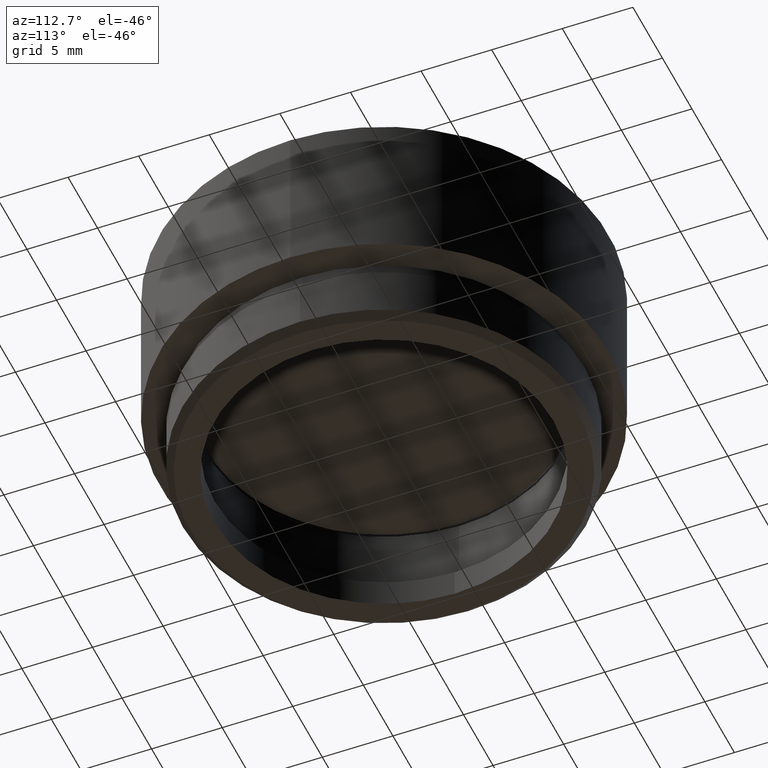
[diagram: clean part render]
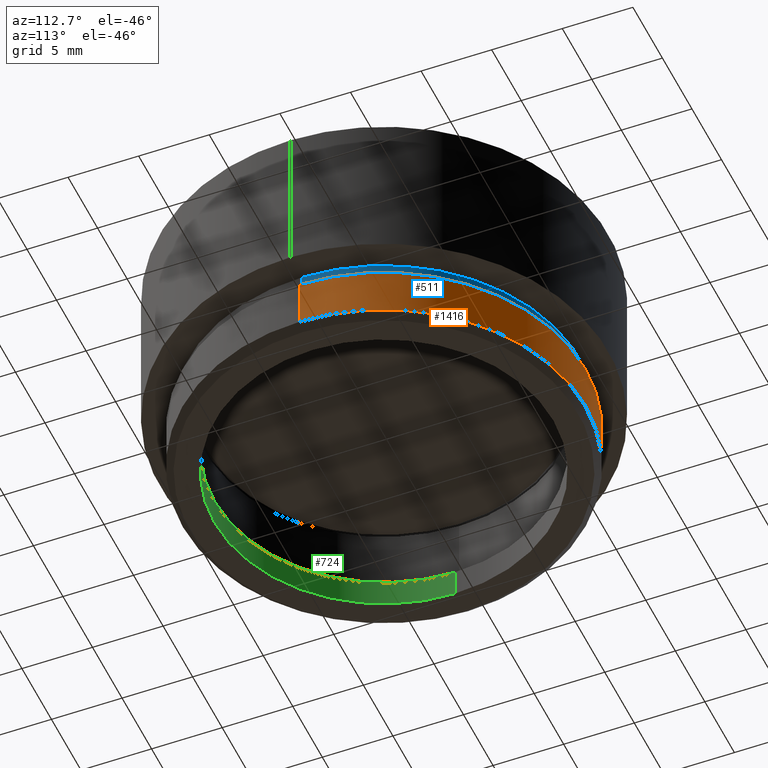
[diagram: same view with three faces highlighted in distinct colors, each labeled with its STEP entity id]
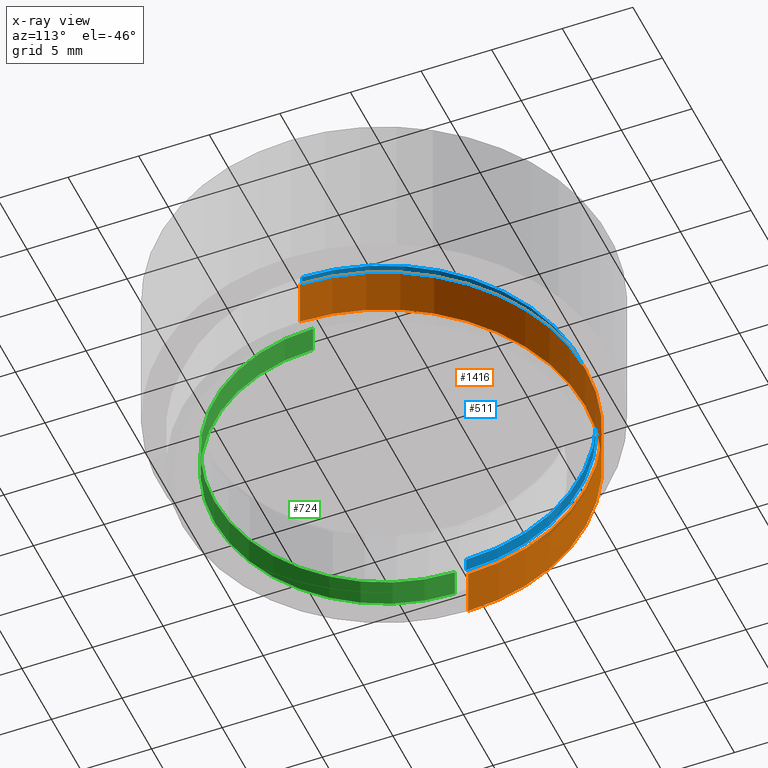
[diagram: x-ray of the same camera — body ghosted, the three highlighted faces saturated]
A machine part, auxiliary view with three faces highlighted in distinct colors.
The next image is the same camera in x-ray (body ghosted, the three faces saturated) — at least one of them is partly hidden behind the body in this view.
Their STEP definitions:

[orange] entity #1416 — the highlighted cylindrical surface (partial cylindrical patch) has radius 14.25 mm, axis along (-0, -0, -1).
#15 = CARTESIAN_POINT ( 'NONE',  ( 14.25000000000000000, 1.745121688784978228E-15, 5.000000000000000000 ) ) ;
#96 = AXIS2_PLACEMENT_3D ( 'NONE', #1671, #487, #1017 ) ;
#103 = DIRECTION ( 'NONE',  ( -0.000000000000000000, -0.000000000000000000, -1.000000000000000000 ) ) ;
#200 = ORIENTED_EDGE ( 'NONE', *, *, #665, .F. ) ;
#232 = CARTESIAN_POINT ( 'NONE',  ( -14.25000000000000000, 0.000000000000000000, 5.000000000000000000 ) ) ;
#261 = CIRCLE ( 'NONE', #428, 14.25000000000000000 ) ;
#287 = CARTESIAN_POINT ( 'NONE',  ( 14.25000000000000000, 1.745121688784978228E-15, 0.4999999999999970024 ) ) ;
#422 = FACE_OUTER_BOUND ( 'NONE', #575, .T. ) ;
#428 = AXIS2_PLACEMENT_3D ( 'NONE', #1389, #1260, #1141 ) ;
#430 = EDGE_CURVE ( 'NONE', #441, #1306, #1472, .T. ) ;
#441 = VERTEX_POINT ( 'NONE', #802 ) ;
#450 = ORIENTED_EDGE ( 'NONE', *, *, #430, .T. ) ;
#453 = VERTEX_POINT ( 'NONE', #817 ) ;
#487 = DIRECTION ( 'NONE',  ( 0.000000000000000000, 0.000000000000000000, -1.000000000000000000 ) ) ;
#558 = EDGE_CURVE ( 'NONE', #1306, #453, #261, .T. ) ;
#575 = EDGE_LOOP ( 'NONE', ( #712, #450, #938, #200 ) ) ;
#596 = DIRECTION ( 'NONE',  ( -0.000000000000000000, -0.000000000000000000, -1.000000000000000000 ) ) ;
#635 = CARTESIAN_POINT ( 'NONE',  ( -14.25000000000000000, 0.000000000000000000, 4.000000000000000000 ) ) ;
#656 = VERTEX_POINT ( 'NONE', #635 ) ;
#665 = EDGE_CURVE ( 'NONE', #656, #453, #757, .T. ) ;
#690 = EDGE_CURVE ( 'NONE', #656, #441, #919, .T. ) ;
#712 = ORIENTED_EDGE ( 'NONE', *, *, #690, .T. ) ;
#726 = DIRECTION ( 'NONE',  ( -1.000000000000000000, 0.000000000000000000, 0.000000000000000000 ) ) ;
#757 = LINE ( 'NONE', #232, #1499 ) ;
#802 = CARTESIAN_POINT ( 'NONE',  ( 14.25000000000000000, 1.745121688784978228E-15, 4.000000000000000000 ) ) ;
#817 = CARTESIAN_POINT ( 'NONE',  ( -14.25000000000000000, 0.000000000000000000, 0.4999999999999970024 ) ) ;
#838 = AXIS2_PLACEMENT_3D ( 'NONE', #1253, #596, #726 ) ;
#919 = CIRCLE ( 'NONE', #96, 14.25000000000000000 ) ;
#938 = ORIENTED_EDGE ( 'NONE', *, *, #558, .T. ) ;
#1017 = DIRECTION ( 'NONE',  ( -1.000000000000000000, 0.000000000000000000, 0.000000000000000000 ) ) ;
#1141 = DIRECTION ( 'NONE',  ( 1.000000000000000000, 0.000000000000000000, 0.000000000000000000 ) ) ;
#1237 = VECTOR ( 'NONE', #1360, 1000.000000000000000 ) ;
#1253 = CARTESIAN_POINT ( 'NONE',  ( 0.000000000000000000, 0.000000000000000000, 5.000000000000000000 ) ) ;
#1260 = DIRECTION ( 'NONE',  ( 0.000000000000000000, 0.000000000000000000, 1.000000000000000000 ) ) ;
#1306 = VERTEX_POINT ( 'NONE', #287 ) ;
#1360 = DIRECTION ( 'NONE',  ( -0.000000000000000000, -0.000000000000000000, -1.000000000000000000 ) ) ;
#1389 = CARTESIAN_POINT ( 'NONE',  ( 0.000000000000000000, 0.000000000000000000, 0.4999999999999970024 ) ) ;
#1416 = ADVANCED_FACE ( 'NONE', ( #422 ), #1509, .T. ) ;
#1472 = LINE ( 'NONE', #15, #1237 ) ;
#1499 = VECTOR ( 'NONE', #103, 1000.000000000000000 ) ;
#1509 = CYLINDRICAL_SURFACE ( 'NONE', #838, 14.25000000000000000 ) ;
#1671 = CARTESIAN_POINT ( 'NONE',  ( 0.000000000000000000, 0.000000000000000000, 4.000000000000000000 ) ) ;

[blue] entity #511 — the highlighted cylindrical surface (partial cylindrical patch) has radius 13.9 mm, axis along (0, 0, 1).
#10 = VECTOR ( 'NONE', #965, 1000.000000000000000 ) ;
#42 = CARTESIAN_POINT ( 'NONE',  ( -13.90000000000000036, 1.702259050814821084E-15, 5.000000000000000000 ) ) ;
#69 = ORIENTED_EDGE ( 'NONE', *, *, #268, .F. ) ;
#76 = CARTESIAN_POINT ( 'NONE',  ( -13.90000000000000036, 1.702259050814821084E-15, 4.000000000000000000 ) ) ;
#100 = EDGE_CURVE ( 'NONE', #510, #1449, #988, .T. ) ;
#212 = DIRECTION ( 'NONE',  ( 0.000000000000000000, 0.000000000000000000, -1.000000000000000000 ) ) ;
#268 = EDGE_CURVE ( 'NONE', #510, #1475, #1311, .T. ) ;
#339 = EDGE_CURVE ( 'NONE', #1449, #550, #1212, .T. ) ;
#358 = ORIENTED_EDGE ( 'NONE', *, *, #339, .T. ) ;
#388 = DIRECTION ( 'NONE',  ( -1.000000000000000000, 0.000000000000000000, 0.000000000000000000 ) ) ;
#429 = CARTESIAN_POINT ( 'NONE',  ( -13.90000000000000036, 1.702259050814821084E-15, 4.000000000000000000 ) ) ;
#473 = EDGE_CURVE ( 'NONE', #1475, #550, #1236, .T. ) ;
#492 = AXIS2_PLACEMENT_3D ( 'NONE', #1508, #1375, #1128 ) ;
#510 = VERTEX_POINT ( 'NONE', #76 ) ;
#511 = ADVANCED_FACE ( 'NONE', ( #1366 ), #1661, .T. ) ;
#523 = DIRECTION ( 'NONE',  ( 0.000000000000000000, 0.000000000000000000, -1.000000000000000000 ) ) ;
#550 = VERTEX_POINT ( 'NONE', #731 ) ;
#561 = DIRECTION ( 'NONE',  ( 0.000000000000000000, 0.000000000000000000, 1.000000000000000000 ) ) ;
#565 = AXIS2_PLACEMENT_3D ( 'NONE', #1397, #212, #1270 ) ;
#697 = CARTESIAN_POINT ( 'NONE',  ( 13.90000000000000036, 0.000000000000000000, 4.000000000000000000 ) ) ;
#731 = CARTESIAN_POINT ( 'NONE',  ( 13.90000000000000036, 0.000000000000000000, 5.000000000000000000 ) ) ;
#736 = ORIENTED_EDGE ( 'NONE', *, *, #100, .T. ) ;
#852 = EDGE_LOOP ( 'NONE', ( #69, #736, #358, #993 ) ) ;
#951 = CARTESIAN_POINT ( 'NONE',  ( 13.90000000000000036, 0.000000000000000000, 4.000000000000000000 ) ) ;
#965 = DIRECTION ( 'NONE',  ( 0.000000000000000000, 0.000000000000000000, 1.000000000000000000 ) ) ;
#988 = LINE ( 'NONE', #429, #10 ) ;
#993 = ORIENTED_EDGE ( 'NONE', *, *, #473, .F. ) ;
#1128 = DIRECTION ( 'NONE',  ( 1.000000000000000000, 0.000000000000000000, 0.000000000000000000 ) ) ;
#1212 = CIRCLE ( 'NONE', #1427, 13.90000000000000036 ) ;
#1236 = LINE ( 'NONE', #951, #1394 ) ;
#1270 = DIRECTION ( 'NONE',  ( -1.000000000000000000, 0.000000000000000000, 0.000000000000000000 ) ) ;
#1311 = CIRCLE ( 'NONE', #565, 13.90000000000000036 ) ;
#1332 = CARTESIAN_POINT ( 'NONE',  ( 0.000000000000000000, 0.000000000000000000, 5.000000000000000000 ) ) ;
#1366 = FACE_OUTER_BOUND ( 'NONE', #852, .T. ) ;
#1375 = DIRECTION ( 'NONE',  ( 0.000000000000000000, 0.000000000000000000, 1.000000000000000000 ) ) ;
#1394 = VECTOR ( 'NONE', #561, 1000.000000000000000 ) ;
#1397 = CARTESIAN_POINT ( 'NONE',  ( 0.000000000000000000, 0.000000000000000000, 4.000000000000000000 ) ) ;
#1427 = AXIS2_PLACEMENT_3D ( 'NONE', #1332, #523, #388 ) ;
#1449 = VERTEX_POINT ( 'NONE', #42 ) ;
#1475 = VERTEX_POINT ( 'NONE', #697 ) ;
#1508 = CARTESIAN_POINT ( 'NONE',  ( 0.000000000000000000, 0.000000000000000000, 4.000000000000000000 ) ) ;
#1661 = CYLINDRICAL_SURFACE ( 'NONE', #492, 13.90000000000000036 ) ;

[green] entity #724 — the highlighted cylindrical surface (partial cylindrical patch) has radius 12 mm, axis along (-0, -0, -1).
#122 = DIRECTION ( 'NONE',  ( 1.000000000000000000, 0.000000000000000000, 0.000000000000000000 ) ) ;
#184 = CARTESIAN_POINT ( 'NONE',  ( 0.000000000000000000, 0.000000000000000000, 2.000000000000001776 ) ) ;
#221 = EDGE_CURVE ( 'NONE', #1393, #1197, #1411, .T. ) ;
#229 = CARTESIAN_POINT ( 'NONE',  ( 0.000000000000000000, 0.000000000000000000, 0.000000000000000000 ) ) ;
#289 = CARTESIAN_POINT ( 'NONE',  ( -12.00000000000000178, 0.000000000000000000, 0.000000000000000000 ) ) ;
#328 = DIRECTION ( 'NONE',  ( 0.000000000000000000, 0.000000000000000000, 1.000000000000000000 ) ) ;
#338 = VECTOR ( 'NONE', #991, 1000.000000000000000 ) ;
#500 = DIRECTION ( 'NONE',  ( -1.000000000000000000, 0.000000000000000000, 0.000000000000000000 ) ) ;
#514 = DIRECTION ( 'NONE',  ( -0.000000000000000000, -0.000000000000000000, -1.000000000000000000 ) ) ;
#520 = FACE_OUTER_BOUND ( 'NONE', #662, .T. ) ;
#586 = LINE ( 'NONE', #1252, #338 ) ;
#590 = EDGE_CURVE ( 'NONE', #1149, #1197, #586, .T. ) ;
#612 = EDGE_CURVE ( 'NONE', #1401, #1149, #1396, .T. ) ;
#613 = CARTESIAN_POINT ( 'NONE',  ( 12.00000000000000178, 1.469576158976824144E-15, 0.000000000000000000 ) ) ;
#628 = CARTESIAN_POINT ( 'NONE',  ( 12.00000000000000178, 1.469576158976824144E-15, 2.000000000000001776 ) ) ;
#662 = EDGE_LOOP ( 'NONE', ( #773, #1599, #1209, #1567 ) ) ;
#713 = AXIS2_PLACEMENT_3D ( 'NONE', #184, #328, #865 ) ;
#724 = ADVANCED_FACE ( 'NONE', ( #520 ), #917, .F. ) ;
#773 = ORIENTED_EDGE ( 'NONE', *, *, #612, .T. ) ;
#865 = DIRECTION ( 'NONE',  ( 1.000000000000000000, 0.000000000000000000, 0.000000000000000000 ) ) ;
#917 = CYLINDRICAL_SURFACE ( 'NONE', #1068, 12.00000000000000178 ) ;
#991 = DIRECTION ( 'NONE',  ( -0.000000000000000000, -0.000000000000000000, -1.000000000000000000 ) ) ;
#1051 = CARTESIAN_POINT ( 'NONE',  ( 0.000000000000000000, 0.000000000000000000, 16.50000000000000000 ) ) ;
#1068 = AXIS2_PLACEMENT_3D ( 'NONE', #1051, #1572, #500 ) ;
#1133 = EDGE_CURVE ( 'NONE', #1401, #1393, #1183, .T. ) ;
#1149 = VERTEX_POINT ( 'NONE', #628 ) ;
#1183 = LINE ( 'NONE', #1456, #1450 ) ;
#1197 = VERTEX_POINT ( 'NONE', #613 ) ;
#1209 = ORIENTED_EDGE ( 'NONE', *, *, #221, .F. ) ;
#1252 = CARTESIAN_POINT ( 'NONE',  ( 12.00000000000000178, 1.469576158976824144E-15, 16.50000000000000000 ) ) ;
#1292 = DIRECTION ( 'NONE',  ( 0.000000000000000000, 0.000000000000000000, 1.000000000000000000 ) ) ;
#1393 = VERTEX_POINT ( 'NONE', #289 ) ;
#1396 = CIRCLE ( 'NONE', #713, 12.00000000000000178 ) ;
#1401 = VERTEX_POINT ( 'NONE', #1613 ) ;
#1411 = CIRCLE ( 'NONE', #1664, 12.00000000000000178 ) ;
#1450 = VECTOR ( 'NONE', #514, 1000.000000000000000 ) ;
#1456 = CARTESIAN_POINT ( 'NONE',  ( -12.00000000000000178, 0.000000000000000000, 16.50000000000000000 ) ) ;
#1567 = ORIENTED_EDGE ( 'NONE', *, *, #1133, .F. ) ;
#1572 = DIRECTION ( 'NONE',  ( -0.000000000000000000, -0.000000000000000000, -1.000000000000000000 ) ) ;
#1599 = ORIENTED_EDGE ( 'NONE', *, *, #590, .T. ) ;
#1613 = CARTESIAN_POINT ( 'NONE',  ( -12.00000000000000178, 0.000000000000000000, 2.000000000000001776 ) ) ;
#1664 = AXIS2_PLACEMENT_3D ( 'NONE', #229, #1292, #122 ) ;